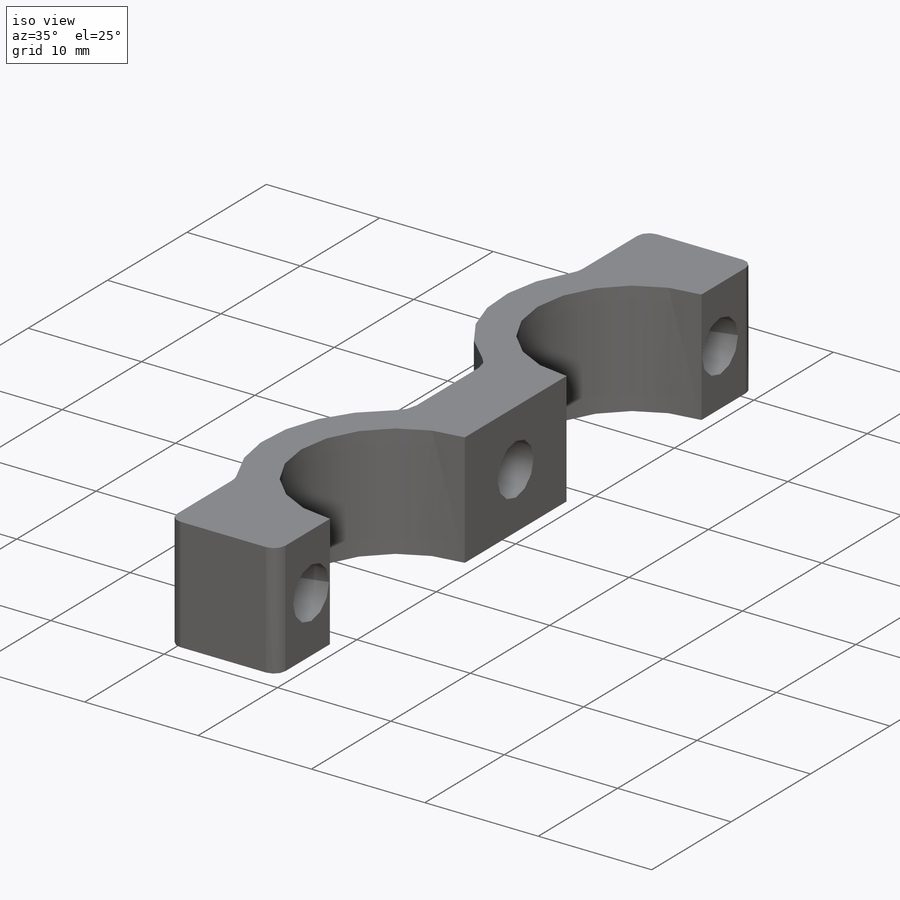
[diagram: iso view]
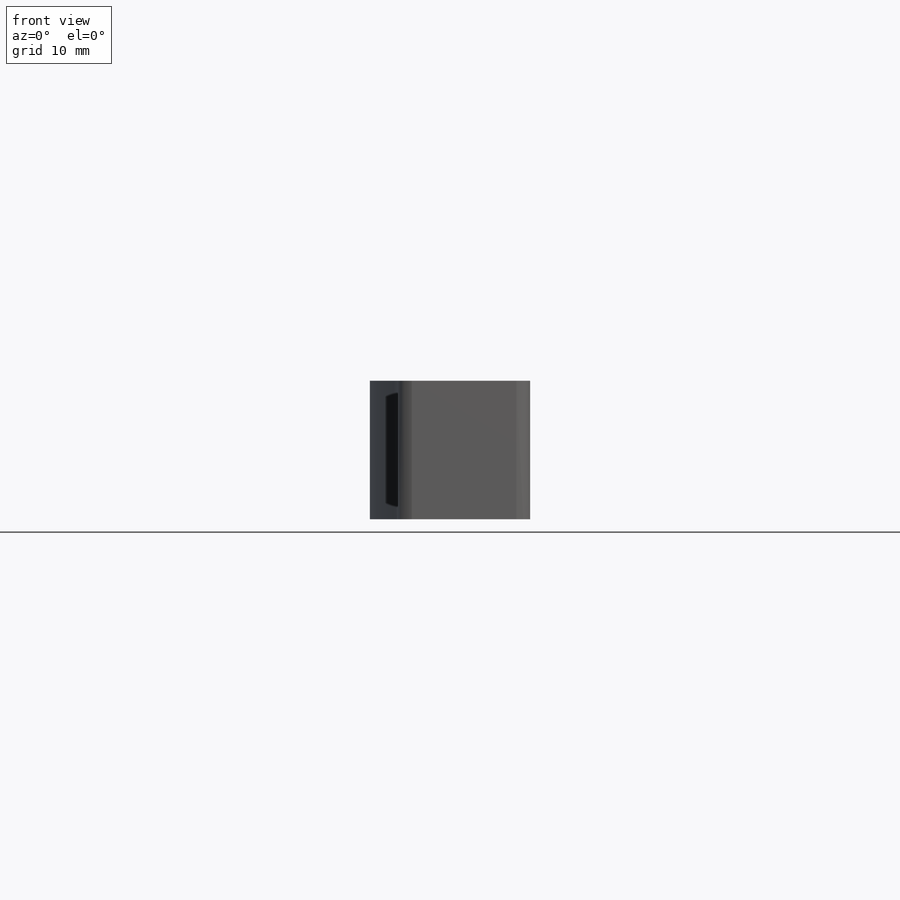
[diagram: front view]
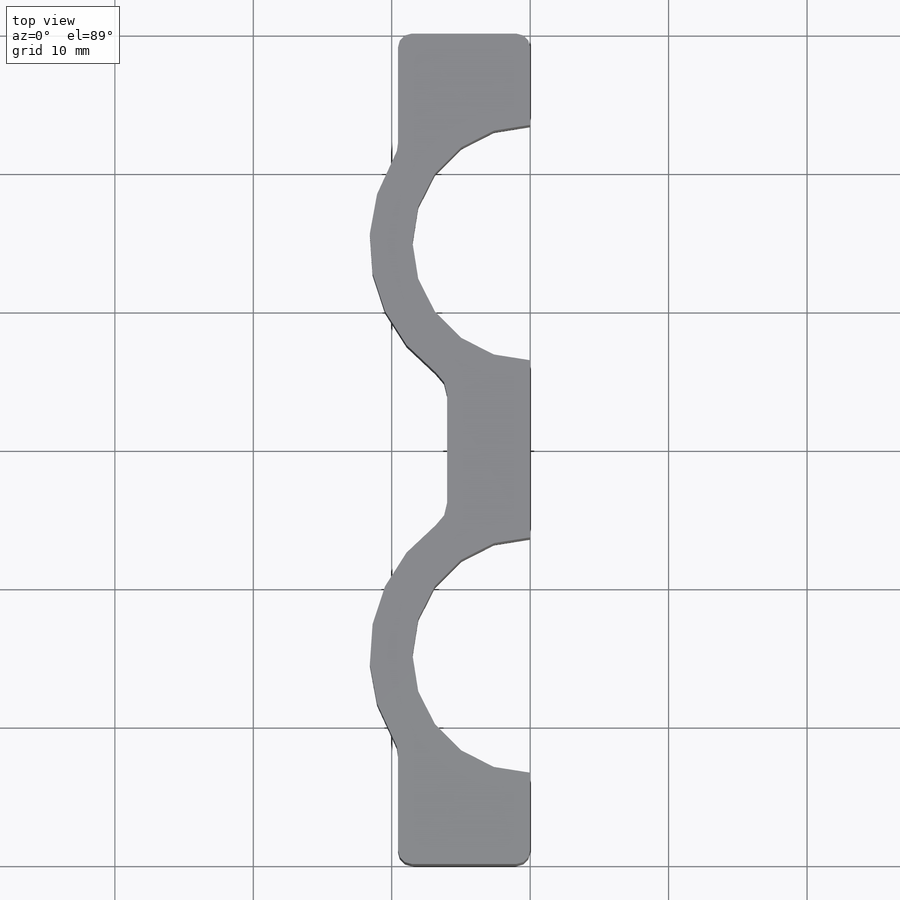
[diagram: top view]
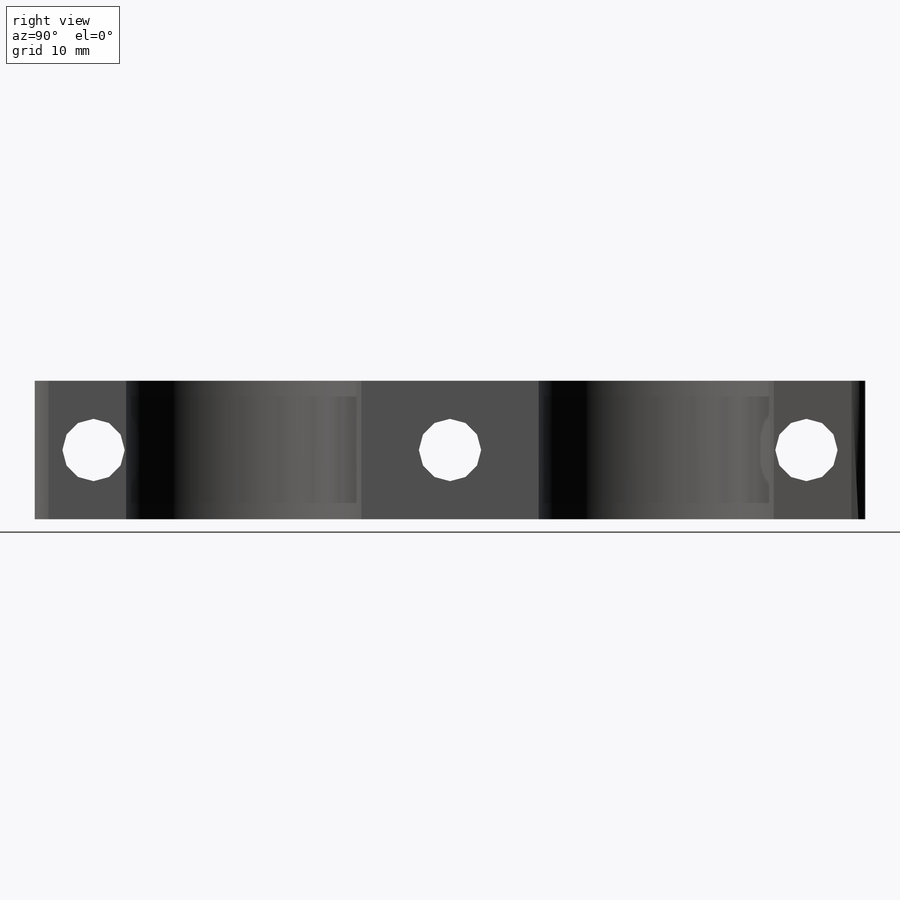
[diagram: right view]
SOLIDWORKS PART (.sldprt)
format: sldprt  version: not decoded by parser v0  size: 344,576 bytes
history: native  units: mm
features: sketch x7, extrude x4, cut_extrude x3, fillet x3, material x1 (+11 scaffold rows collapsed)
feature tree (29):
  scaffold x11  (default folders/planes/origin — collapsed)
  material  "3.1355 (EN-AW 2024)"
  sketch  "Эскиз1"  dims[c1.D2=~13.247635mm c1.D3=14.2mm c1.D1=60.0mm c2.D2=15.1mm c2.D4=3.0mm]
  extrude  "Бобышка-Вытянуть1"  Depth=10mm
  sketch  "Эскиз2"  dims[D1=9.0mm]
  sketch  "Эскиз3"  dims[D1=4.5mm D2=2.0mm]
  extrude  "Бобышка-Вытянуть2"  [1 undecoded]
  sketch  "Эскиз9"  dims[c1.D1=~38.034663mm c1.D6=9.0mm c2.D1=1.5mm c2.D2=1.5mm c2.D3=3.0mm c2.D4=1.5mm c2.D5=1.5mm]
  extrude  "Бобышка-Вытянуть4"  [1 undecoded]
  sketch  "Эскиз4"  dims[D1=4.5mm]
  cut_extrude  "Вырез-Вытянуть4"  [1 undecoded]
  cut_extrude  "Вырез-Вытянуть2"  [1 undecoded]
  fillet  "Скругление2"  Radius=1mm
  sketch  "Эскиз5"  dims[D1=0.1mm]
  extrude  "Бобышка-Вытянуть3"  [1 undecoded]
  sketch  "Эскиз7"  dims[D1=1.5mm D2=1.5mm]
  cut_extrude  "Вырез-Вытянуть3"  [1 undecoded]
  fillet  "Скругление3"  Radius=1mm
  fillet  "Скругление4"  Radius=2mm
decode coverage: 11 of 17 modeling features carry decoded parameters
note: ~ marks probable driven/reference dimensions
note: 6 parameter values undecoded
summary: no parameter record found for 6 features
note: suppression state not decoded; provenance and decode notes live in map.json
